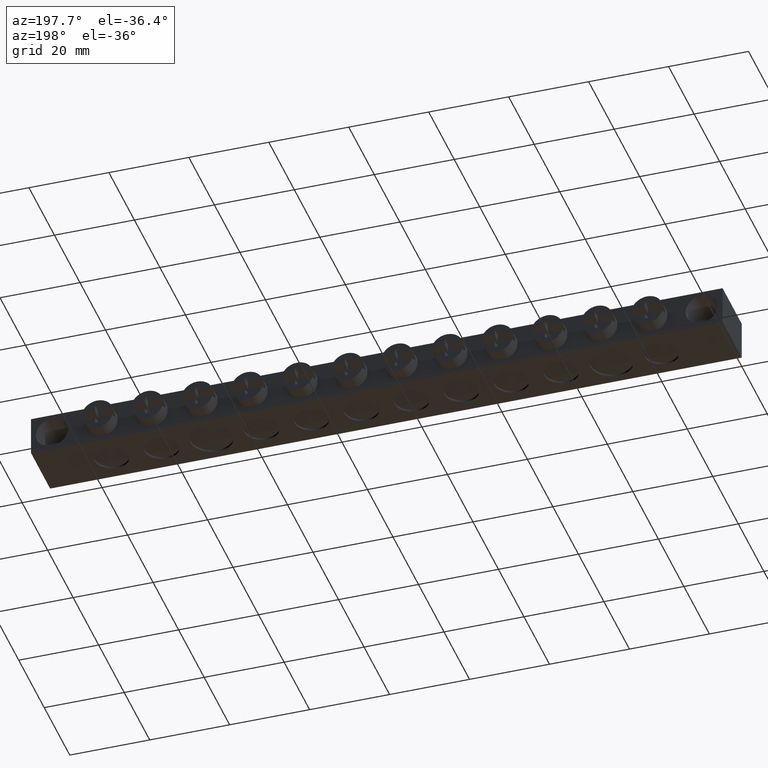
[diagram: clean part render]
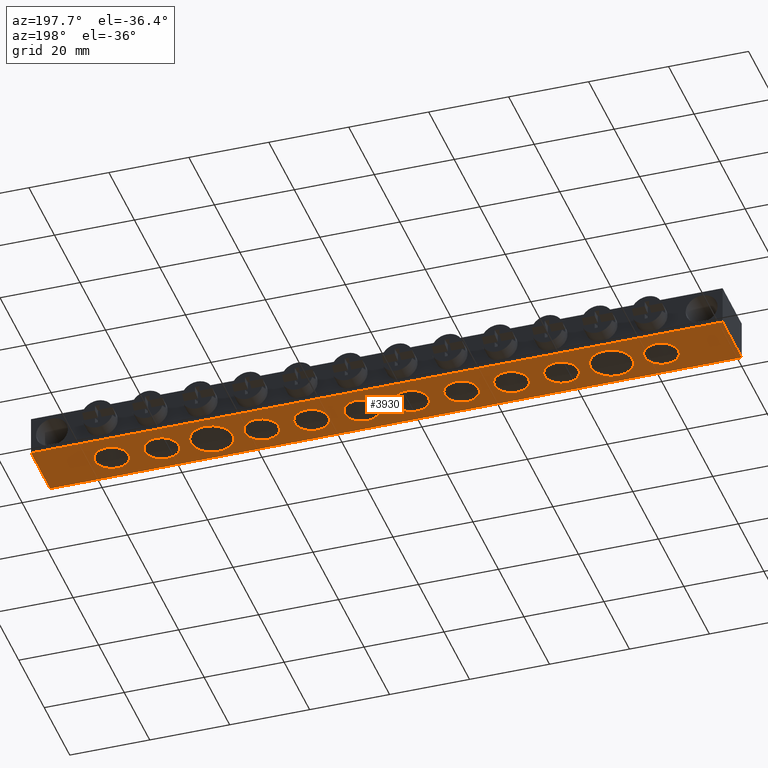
[diagram: same view with one face highlighted and labeled with its STEP entity id]
A machine part, auxiliary view. The second image highlights one B-rep face of the part: STEP entity #3930.
In plain terms, the highlighted planar face has unit normal (0, 0, 1).
Its self-contained STEP definition (entity closure, byte-faithful):
#860 = CARTESIAN_POINT ( 'NONE',  ( 130.2500000000000000, 7.299999999999998900, -10.00000000000000200 ) ) ;
#867 = DIRECTION ( 'NONE',  ( 1.000000000000000000, 0.0000000000000000000, 0.0000000000000000000 ) ) ;
#883 = DIRECTION ( 'NONE',  ( -0.0000000000000000000, -0.0000000000000000000, -1.000000000000000000 ) ) ;
#892 = DIRECTION ( 'NONE',  ( -0.0000000000000000000, -0.0000000000000000000, -1.000000000000000000 ) ) ;
#893 = DIRECTION ( 'NONE',  ( 1.000000000000000000, 0.0000000000000000000, 0.0000000000000000000 ) ) ;
#896 = DIRECTION ( 'NONE',  ( -0.0000000000000000000, -0.0000000000000000000, -1.000000000000000000 ) ) ;
#905 = DIRECTION ( 'NONE',  ( -0.0000000000000000000, -0.0000000000000000000, -1.000000000000000000 ) ) ;
#910 = CARTESIAN_POINT ( 'NONE',  ( 155.2500000000000000, 7.299999999999998900, -10.00000000000000200 ) ) ;
#911 = DIRECTION ( 'NONE',  ( 1.000000000000000000, 0.0000000000000000000, 0.0000000000000000000 ) ) ;
#921 = CARTESIAN_POINT ( 'NONE',  ( 105.2500000000000000, 7.299999999999989200, -10.00000000000000200 ) ) ;
#928 = CARTESIAN_POINT ( 'NONE',  ( 67.75000000000000000, 7.299999999999884400, -10.00000000000000200 ) ) ;
#929 = DIRECTION ( 'NONE',  ( 1.000000000000000000, 0.0000000000000000000, 0.0000000000000000000 ) ) ;
#933 = DIRECTION ( 'NONE',  ( -0.0000000000000000000, -0.0000000000000000000, -1.000000000000000000 ) ) ;
#941 = DIRECTION ( 'NONE',  ( 1.000000000000000000, 0.0000000000000000000, 0.0000000000000000000 ) ) ;
#942 = DIRECTION ( 'NONE',  ( 1.000000000000000000, 0.0000000000000000000, 0.0000000000000000000 ) ) ;
#949 = CARTESIAN_POINT ( 'NONE',  ( 42.75000000000000700, 7.299999999999816000, -10.00000000000000200 ) ) ;
#951 = DIRECTION ( 'NONE',  ( 1.000000000000000000, 0.0000000000000000000, 0.0000000000000000000 ) ) ;
#958 = CARTESIAN_POINT ( 'NONE',  ( 142.7500000000000900, 7.299999999999998900, -10.00000000000000200 ) ) ;
#960 = CARTESIAN_POINT ( 'NONE',  ( 92.75000000000000000, 7.299999999999954500, -10.00000000000000200 ) ) ;
#961 = DIRECTION ( 'NONE',  ( -0.0000000000000000000, -0.0000000000000000000, -1.000000000000000000 ) ) ;
#964 = DIRECTION ( 'NONE',  ( -0.0000000000000000000, -0.0000000000000000000, -1.000000000000000000 ) ) ;
#978 = CARTESIAN_POINT ( 'NONE',  ( 117.7500000000000300, 7.299999999999992700, -10.00000000000000200 ) ) ;
#981 = DIRECTION ( 'NONE',  ( -0.0000000000000000000, -0.0000000000000000000, -1.000000000000000000 ) ) ;
#991 = DIRECTION ( 'NONE',  ( 1.000000000000000000, 0.0000000000000000000, 0.0000000000000000000 ) ) ;
#1023 = CARTESIAN_POINT ( 'NONE',  ( 80.25000000000000000, 7.299999999999918100, -10.00000000000000200 ) ) ;
#1032 = CARTESIAN_POINT ( 'NONE',  ( 55.25000000000000700, 7.299999999999849700, -10.00000000000000200 ) ) ;
#1042 = DIRECTION ( 'NONE',  ( 1.000000000000000000, 0.0000000000000000000, 0.0000000000000000000 ) ) ;
#1044 = DIRECTION ( 'NONE',  ( -0.0000000000000000000, -0.0000000000000000000, -1.000000000000000000 ) ) ;
#1057 = DIRECTION ( 'NONE',  ( -0.0000000000000000000, -0.0000000000000000000, -1.000000000000000000 ) ) ;
#1061 = DIRECTION ( 'NONE',  ( 1.000000000000000000, 0.0000000000000000000, 0.0000000000000000000 ) ) ;
#1191 = DIRECTION ( 'NONE',  ( -0.0000000000000000000, -0.0000000000000000000, -1.000000000000000000 ) ) ;
#1194 = CARTESIAN_POINT ( 'NONE',  ( 30.25000000000000000, 7.299999999999998900, -10.00000000000000200 ) ) ;
#1197 = DIRECTION ( 'NONE',  ( -0.0000000000000000000, -0.0000000000000000000, -1.000000000000000000 ) ) ;
#1209 = DIRECTION ( 'NONE',  ( 1.000000000000000000, 0.0000000000000000000, 0.0000000000000000000 ) ) ;
#1218 = CARTESIAN_POINT ( 'NONE',  ( 17.75000000000000700, 7.299999999999998900, -10.00000000000000200 ) ) ;
#1222 = DIRECTION ( 'NONE',  ( 1.000000000000000000, 0.0000000000000000000, 0.0000000000000000000 ) ) ;
#1954 = EDGE_CURVE ( 'NONE', #7369, #7339, #3229, .T. ) ;
#1959 = EDGE_CURVE ( 'NONE', #7306, #7329, #3171, .T. ) ;
#1963 = EDGE_CURVE ( 'NONE', #7352, #7294, #3203, .T. ) ;
#1967 = EDGE_CURVE ( 'NONE', #7360, #7377, #3230, .T. ) ;
#1973 = EDGE_CURVE ( 'NONE', #7379, #7344, #3181, .T. ) ;
#1976 = EDGE_CURVE ( 'NONE', #7278, #7392, #3186, .T. ) ;
#1979 = EDGE_CURVE ( 'NONE', #7305, #7320, #3202, .T. ) ;
#1989 = EDGE_CURVE ( 'NONE', #7348, #7324, #3260, .T. ) ;
#2006 = EDGE_CURVE ( 'NONE', #7323, #7353, #3274, .T. ) ;
#2007 = EDGE_CURVE ( 'NONE', #7365, #7304, #3245, .T. ) ;
#2054 = EDGE_CURVE ( 'NONE', #7371, #7331, #3319, .T. ) ;
#2058 = EDGE_CURVE ( 'NONE', #7346, #7351, #3331, .T. ) ;
#2237 = DIRECTION ( 'NONE',  ( -1.000000000000000000, -0.0000000000000000000, 0.0000000000000000000 ) ) ;
#2248 = LINE ( 'NONE', #2249, #2743 ) ;
#2249 = CARTESIAN_POINT ( 'NONE',  ( 0.0000000000000000000, 15.00000000000000000, -10.00000000000000000 ) ) ;
#2250 = DIRECTION ( 'NONE',  ( 1.000000000000000000, 0.0000000000000000000, 0.0000000000000000000 ) ) ;
#2253 = CARTESIAN_POINT ( 'NONE',  ( 55.25000000000000700, 7.299999999999849700, -10.00000000000000200 ) ) ;
#2258 = DIRECTION ( 'NONE',  ( -0.0000000000000000000, -0.0000000000000000000, -1.000000000000000000 ) ) ;
#2272 = LINE ( 'NONE', #2285, #2820 ) ;
#2273 = CARTESIAN_POINT ( 'NONE',  ( 30.25000000000000000, 7.299999999999998900, -10.00000000000000200 ) ) ;
#2274 = DIRECTION ( 'NONE',  ( 1.000000000000000000, 0.0000000000000000000, 0.0000000000000000000 ) ) ;
#2285 = CARTESIAN_POINT ( 'NONE',  ( 173.0000000000000600, 15.00000000000000000, -10.00000000000000000 ) ) ;
#2287 = DIRECTION ( 'NONE',  ( -0.0000000000000000000, -0.0000000000000000000, -1.000000000000000000 ) ) ;
#2290 = DIRECTION ( 'NONE',  ( -0.0000000000000000000, 1.000000000000000000, 0.0000000000000000000 ) ) ;
#2300 = CARTESIAN_POINT ( 'NONE',  ( 92.75000000000000000, 7.299999999999954500, -10.00000000000000200 ) ) ;
#2303 = DIRECTION ( 'NONE',  ( 1.000000000000000000, 0.0000000000000000000, 0.0000000000000000000 ) ) ;
#2307 = DIRECTION ( 'NONE',  ( -0.0000000000000000000, -0.0000000000000000000, -1.000000000000000000 ) ) ;
#2319 = LINE ( 'NONE', #2331, #2803 ) ;
#2322 = DIRECTION ( 'NONE',  ( 1.000000000000000000, 0.0000000000000000000, 0.0000000000000000000 ) ) ;
#2329 = CARTESIAN_POINT ( 'NONE',  ( 80.25000000000000000, 7.299999999999918100, -10.00000000000000200 ) ) ;
#2331 = CARTESIAN_POINT ( 'NONE',  ( 0.0000000000000000000, 15.00000000000000000, -10.00000000000000000 ) ) ;
#2332 = DIRECTION ( 'NONE',  ( -0.0000000000000000000, -0.0000000000000000000, -1.000000000000000000 ) ) ;
#2354 = DIRECTION ( 'NONE',  ( 0.0000000000000000000, -1.000000000000000000, -0.0000000000000000000 ) ) ;
#2393 = CARTESIAN_POINT ( 'NONE',  ( 105.2500000000000000, 7.299999999999989200, -10.00000000000000200 ) ) ;
#2412 = DIRECTION ( 'NONE',  ( -0.0000000000000000000, -0.0000000000000000000, -1.000000000000000000 ) ) ;
#2414 = DIRECTION ( 'NONE',  ( 1.000000000000000000, 0.0000000000000000000, 0.0000000000000000000 ) ) ;
#2432 = CARTESIAN_POINT ( 'NONE',  ( 17.75000000000000700, 7.299999999999998900, -10.00000000000000200 ) ) ;
#2437 = DIRECTION ( 'NONE',  ( 1.000000000000000000, 0.0000000000000000000, 0.0000000000000000000 ) ) ;
#2441 = DIRECTION ( 'NONE',  ( -0.0000000000000000000, -0.0000000000000000000, -1.000000000000000000 ) ) ;
#2449 = CARTESIAN_POINT ( 'NONE',  ( 130.2500000000000000, 7.299999999999998900, -10.00000000000000200 ) ) ;
#2450 = DIRECTION ( 'NONE',  ( -0.0000000000000000000, -0.0000000000000000000, -1.000000000000000000 ) ) ;
#2455 = CARTESIAN_POINT ( 'NONE',  ( 155.2500000000000000, 7.299999999999998900, -10.00000000000000200 ) ) ;
#2458 = DIRECTION ( 'NONE',  ( -0.0000000000000000000, -0.0000000000000000000, -1.000000000000000000 ) ) ;
#2467 = DIRECTION ( 'NONE',  ( 1.000000000000000000, 0.0000000000000000000, 0.0000000000000000000 ) ) ;
#2468 = LINE ( 'NONE', #2476, #2868 ) ;
#2472 = DIRECTION ( 'NONE',  ( 1.000000000000000000, 0.0000000000000000000, 0.0000000000000000000 ) ) ;
#2476 = CARTESIAN_POINT ( 'NONE',  ( 0.0000000000000000000, 0.0000000000000000000, -10.00000000000000000 ) ) ;
#2484 = CARTESIAN_POINT ( 'NONE',  ( 117.7500000000000300, 7.299999999999992700, -10.00000000000000200 ) ) ;
#2485 = CARTESIAN_POINT ( 'NONE',  ( 42.75000000000000700, 7.299999999999816000, -10.00000000000000200 ) ) ;
#2490 = DIRECTION ( 'NONE',  ( 1.000000000000000000, 0.0000000000000000000, 0.0000000000000000000 ) ) ;
#2497 = DIRECTION ( 'NONE',  ( -0.0000000000000000000, -0.0000000000000000000, -1.000000000000000000 ) ) ;
#2500 = DIRECTION ( 'NONE',  ( -0.0000000000000000000, -0.0000000000000000000, -1.000000000000000000 ) ) ;
#2503 = DIRECTION ( 'NONE',  ( 1.000000000000000000, 0.0000000000000000000, 0.0000000000000000000 ) ) ;
#2507 = DIRECTION ( 'NONE',  ( -0.0000000000000000000, -0.0000000000000000000, -1.000000000000000000 ) ) ;
#2511 = DIRECTION ( 'NONE',  ( 1.000000000000000000, 0.0000000000000000000, 0.0000000000000000000 ) ) ;
#2512 = DIRECTION ( 'NONE',  ( 1.000000000000000000, 0.0000000000000000000, -0.0000000000000000000 ) ) ;
#2517 = CARTESIAN_POINT ( 'NONE',  ( 142.7500000000000900, 7.299999999999998900, -10.00000000000000200 ) ) ;
#2719 = CIRCLE ( 'NONE', #2721, 4.250000000000003600 ) ;
#2721 = AXIS2_PLACEMENT_3D ( 'NONE', #5629, #5669, #5700 ) ;
#2743 = VECTOR ( 'NONE', #2237, 1000.000000000000000 ) ;
#2754 = CIRCLE ( 'NONE', #2825, 4.250000000000003600 ) ;
#2777 = CIRCLE ( 'NONE', #2786, 4.250000000000003600 ) ;
#2784 = CIRCLE ( 'NONE', #2836, 5.249999999999997300 ) ;
#2786 = AXIS2_PLACEMENT_3D ( 'NONE', #2300, #2307, #2322 ) ;
#2792 = CIRCLE ( 'NONE', #2822, 4.250000000000003600 ) ;
#2803 = VECTOR ( 'NONE', #2354, 1000.000000000000000 ) ;
#2820 = VECTOR ( 'NONE', #2290, 1000.000000000000000 ) ;
#2822 = AXIS2_PLACEMENT_3D ( 'NONE', #2329, #2332, #2303 ) ;
#2825 = AXIS2_PLACEMENT_3D ( 'NONE', #2253, #2258, #2250 ) ;
#2836 = AXIS2_PLACEMENT_3D ( 'NONE', #2273, #2287, #2274 ) ;
#2839 = CIRCLE ( 'NONE', #2841, 4.250000000000003600 ) ;
#2841 = AXIS2_PLACEMENT_3D ( 'NONE', #2393, #2412, #2414 ) ;
#2855 = CIRCLE ( 'NONE', #2891, 4.250000000000000000 ) ;
#2860 = AXIS2_PLACEMENT_3D ( 'NONE', #2455, #2458, #2472 ) ;
#2868 = VECTOR ( 'NONE', #2512, 1000.000000000000000 ) ;
#2877 = AXIS2_PLACEMENT_3D ( 'NONE', #2449, #2450, #2467 ) ;
#2886 = CIRCLE ( 'NONE', #2877, 5.250000000000004400 ) ;
#2891 = AXIS2_PLACEMENT_3D ( 'NONE', #2432, #2441, #2437 ) ;
#2893 = CIRCLE ( 'NONE', #2860, 4.250000000000003600 ) ;
#2922 = AXIS2_PLACEMENT_3D ( 'NONE', #2485, #2500, #2511 ) ;
#2923 = AXIS2_PLACEMENT_3D ( 'NONE', #2484, #2507, #2503 ) ;
#2924 = AXIS2_PLACEMENT_3D ( 'NONE', #2517, #2497, #2490 ) ;
#2932 = CIRCLE ( 'NONE', #2922, 4.250000000000003600 ) ;
#2934 = CIRCLE ( 'NONE', #2923, 4.250000000000003600 ) ;
#2942 = CIRCLE ( 'NONE', #2924, 4.250000000000003600 ) ;
#3171 = CIRCLE ( 'NONE', #3219, 4.250000000000003600 ) ;
#3181 = CIRCLE ( 'NONE', #3185, 4.250000000000003600 ) ;
#3185 = AXIS2_PLACEMENT_3D ( 'NONE', #958, #961, #951 ) ;
#3186 = CIRCLE ( 'NONE', #3192, 4.250000000000003600 ) ;
#3188 = AXIS2_PLACEMENT_3D ( 'NONE', #910, #892, #911 ) ;
#3192 = AXIS2_PLACEMENT_3D ( 'NONE', #949, #964, #941 ) ;
#3202 = CIRCLE ( 'NONE', #3207, 4.250000000000003600 ) ;
#3203 = CIRCLE ( 'NONE', #3205, 4.250000000000003600 ) ;
#3205 = AXIS2_PLACEMENT_3D ( 'NONE', #928, #905, #929 ) ;
#3207 = AXIS2_PLACEMENT_3D ( 'NONE', #960, #933, #942 ) ;
#3219 = AXIS2_PLACEMENT_3D ( 'NONE', #921, #896, #893 ) ;
#3220 = AXIS2_PLACEMENT_3D ( 'NONE', #860, #883, #867 ) ;
#3229 = CIRCLE ( 'NONE', #3220, 5.250000000000004400 ) ;
#3230 = CIRCLE ( 'NONE', #3188, 4.250000000000003600 ) ;
#3236 = AXIS2_PLACEMENT_3D ( 'NONE', #1032, #1057, #1061 ) ;
#3245 = CIRCLE ( 'NONE', #3270, 4.250000000000003600 ) ;
#3260 = CIRCLE ( 'NONE', #3267, 4.250000000000003600 ) ;
#3267 = AXIS2_PLACEMENT_3D ( 'NONE', #978, #981, #991 ) ;
#3270 = AXIS2_PLACEMENT_3D ( 'NONE', #1023, #1044, #1042 ) ;
#3274 = CIRCLE ( 'NONE', #3236, 4.250000000000003600 ) ;
#3295 = AXIS2_PLACEMENT_3D ( 'NONE', #1194, #1191, #1222 ) ;
#3319 = CIRCLE ( 'NONE', #3322, 4.250000000000000000 ) ;
#3322 = AXIS2_PLACEMENT_3D ( 'NONE', #1218, #1197, #1209 ) ;
#3331 = CIRCLE ( 'NONE', #3295, 5.249999999999997300 ) ;
#3432 = AXIS2_PLACEMENT_3D ( 'NONE', #6443, #6482, #6444 ) ;
#3662 = CARTESIAN_POINT ( 'NONE',  ( 76.00000000000000000, 7.299999999999919000, -10.00000000000000200 ) ) ;
#3664 = CARTESIAN_POINT ( 'NONE',  ( 97.00000000000000000, 7.299999999999954500, -10.00000000000000200 ) ) ;
#3672 = CARTESIAN_POINT ( 'NONE',  ( 109.5000000000000000, 7.299999999999989200, -10.00000000000000200 ) ) ;
#3674 = CARTESIAN_POINT ( 'NONE',  ( 173.0000000000000600, 0.0000000000000000000, -10.00000000000000000 ) ) ;
#3687 = CARTESIAN_POINT ( 'NONE',  ( 47.00000000000001400, 7.299999999999816000, -10.00000000000000200 ) ) ;
#3695 = CARTESIAN_POINT ( 'NONE',  ( 0.0000000000000000000, 15.00000000000000000, -10.00000000000000000 ) ) ;
#3702 = CARTESIAN_POINT ( 'NONE',  ( 173.0000000000000600, 15.00000000000000000, -10.00000000000000000 ) ) ;
#3704 = CARTESIAN_POINT ( 'NONE',  ( 63.50000000000000000, 7.299999999999885200, -10.00000000000000200 ) ) ;
#3714 = CARTESIAN_POINT ( 'NONE',  ( 0.0000000000000000000, 0.0000000000000000000, -10.00000000000000000 ) ) ;
#3723 = CARTESIAN_POINT ( 'NONE',  ( 88.50000000000000000, 7.299999999999955400, -10.00000000000000200 ) ) ;
#3725 = CARTESIAN_POINT ( 'NONE',  ( 13.50000000000000500, 7.299999999999999800, -10.00000000000000200 ) ) ;
#3726 = CARTESIAN_POINT ( 'NONE',  ( 100.9999999999999900, 7.299999999999990100, -10.00000000000000200 ) ) ;
#3729 = CARTESIAN_POINT ( 'NONE',  ( 59.50000000000001400, 7.299999999999849700, -10.00000000000000200 ) ) ;
#3735 = CARTESIAN_POINT ( 'NONE',  ( 113.5000000000000100, 7.299999999999993600, -10.00000000000000200 ) ) ;
#3747 = CARTESIAN_POINT ( 'NONE',  ( 138.5000000000000600, 7.299999999999999800, -10.00000000000000200 ) ) ;
#3748 = CARTESIAN_POINT ( 'NONE',  ( 122.0000000000000300, 7.299999999999992700, -10.00000000000000200 ) ) ;
#3751 = CARTESIAN_POINT ( 'NONE',  ( 159.5000000000000000, 7.299999999999998900, -10.00000000000000200 ) ) ;
#3756 = CARTESIAN_POINT ( 'NONE',  ( 35.50000000000000000, 7.299999999999998900, -10.00000000000000200 ) ) ;
#3760 = CARTESIAN_POINT ( 'NONE',  ( 25.00000000000000000, 7.299999999999999800, -10.00000000000000200 ) ) ;
#3764 = CARTESIAN_POINT ( 'NONE',  ( 84.50000000000000000, 7.299999999999918100, -10.00000000000000200 ) ) ;
#3767 = CARTESIAN_POINT ( 'NONE',  ( 135.5000000000000000, 7.299999999999998900, -10.00000000000000200 ) ) ;
#3772 = CARTESIAN_POINT ( 'NONE',  ( 72.00000000000001400, 7.299999999999884400, -10.00000000000000200 ) ) ;
#3777 = CARTESIAN_POINT ( 'NONE',  ( 51.00000000000000700, 7.299999999999850600, -10.00000000000000200 ) ) ;
#3781 = CARTESIAN_POINT ( 'NONE',  ( 125.0000000000000000, 7.299999999999999800, -10.00000000000000200 ) ) ;
#3787 = CARTESIAN_POINT ( 'NONE',  ( 38.50000000000000700, 7.299999999999816900, -10.00000000000000200 ) ) ;
#3792 = CARTESIAN_POINT ( 'NONE',  ( 151.0000000000000000, 7.299999999999999800, -10.00000000000000200 ) ) ;
#3805 = CARTESIAN_POINT ( 'NONE',  ( 22.00000000000000700, 7.299999999999998900, -10.00000000000000200 ) ) ;
#3813 = CARTESIAN_POINT ( 'NONE',  ( 147.0000000000000900, 7.299999999999998900, -10.00000000000000200 ) ) ;
#3930 = ADVANCED_FACE ( 'NONE', ( #6455, #6469, #6472, #6453, #6437, #6456, #6470, #6473, #6451, #6477, #6448, #6478, #6476 ), #6458, .F. ) ;
#4153 = EDGE_CURVE ( 'NONE', #7294, #7352, #2719, .T. ) ;
#4182 = EDGE_CURVE ( 'NONE', #7293, #7268, #2248, .T. ) ;
#4183 = EDGE_CURVE ( 'NONE', #7353, #7323, #2754, .T. ) ;
#4192 = EDGE_CURVE ( 'NONE', #7290, #7293, #2272, .T. ) ;
#4196 = EDGE_CURVE ( 'NONE', #7351, #7346, #2784, .T. ) ;
#4201 = EDGE_CURVE ( 'NONE', #7320, #7305, #2777, .T. ) ;
#4203 = EDGE_CURVE ( 'NONE', #7304, #7365, #2792, .T. ) ;
#4206 = EDGE_CURVE ( 'NONE', #7268, #7277, #2319, .T. ) ;
#4229 = EDGE_CURVE ( 'NONE', #7329, #7306, #2839, .T. ) ;
#4238 = EDGE_CURVE ( 'NONE', #7331, #7371, #2855, .T. ) ;
#4242 = EDGE_CURVE ( 'NONE', #7339, #7369, #2886, .T. ) ;
#4243 = EDGE_CURVE ( 'NONE', #7377, #7360, #2893, .T. ) ;
#4252 = EDGE_CURVE ( 'NONE', #7277, #7290, #2468, .T. ) ;
#4256 = EDGE_CURVE ( 'NONE', #7344, #7379, #2942, .T. ) ;
#4259 = EDGE_CURVE ( 'NONE', #7392, #7278, #2932, .T. ) ;
#4260 = EDGE_CURVE ( 'NONE', #7324, #7348, #2934, .T. ) ;
#5059 = ORIENTED_EDGE ( 'NONE', *, *, #1979, .F. ) ;
#5064 = ORIENTED_EDGE ( 'NONE', *, *, #4259, .F. ) ;
#5087 = ORIENTED_EDGE ( 'NONE', *, *, #4153, .F. ) ;
#5088 = ORIENTED_EDGE ( 'NONE', *, *, #4201, .F. ) ;
#5115 = ORIENTED_EDGE ( 'NONE', *, *, #1976, .F. ) ;
#5123 = ORIENTED_EDGE ( 'NONE', *, *, #1959, .F. ) ;
#5124 = ORIENTED_EDGE ( 'NONE', *, *, #4182, .F. ) ;
#5125 = ORIENTED_EDGE ( 'NONE', *, *, #4242, .F. ) ;
#5128 = ORIENTED_EDGE ( 'NONE', *, *, #1989, .F. ) ;
#5130 = ORIENTED_EDGE ( 'NONE', *, *, #1963, .F. ) ;
#5133 = ORIENTED_EDGE ( 'NONE', *, *, #4243, .F. ) ;
#5134 = ORIENTED_EDGE ( 'NONE', *, *, #4256, .F. ) ;
#5136 = ORIENTED_EDGE ( 'NONE', *, *, #4229, .F. ) ;
#5138 = ORIENTED_EDGE ( 'NONE', *, *, #4238, .F. ) ;
#5139 = ORIENTED_EDGE ( 'NONE', *, *, #4252, .F. ) ;
#5140 = ORIENTED_EDGE ( 'NONE', *, *, #4196, .F. ) ;
#5141 = ORIENTED_EDGE ( 'NONE', *, *, #2058, .F. ) ;
#5144 = ORIENTED_EDGE ( 'NONE', *, *, #2054, .F. ) ;
#5145 = ORIENTED_EDGE ( 'NONE', *, *, #4206, .F. ) ;
#5154 = ORIENTED_EDGE ( 'NONE', *, *, #4260, .F. ) ;
#5156 = ORIENTED_EDGE ( 'NONE', *, *, #4192, .F. ) ;
#5157 = ORIENTED_EDGE ( 'NONE', *, *, #1973, .F. ) ;
#5161 = ORIENTED_EDGE ( 'NONE', *, *, #2007, .F. ) ;
#5168 = ORIENTED_EDGE ( 'NONE', *, *, #1954, .F. ) ;
#5170 = ORIENTED_EDGE ( 'NONE', *, *, #4183, .F. ) ;
#5171 = ORIENTED_EDGE ( 'NONE', *, *, #1967, .F. ) ;
#5175 = ORIENTED_EDGE ( 'NONE', *, *, #4203, .F. ) ;
#5183 = ORIENTED_EDGE ( 'NONE', *, *, #2006, .F. ) ;
#5629 = CARTESIAN_POINT ( 'NONE',  ( 67.75000000000000000, 7.299999999999884400, -10.00000000000000200 ) ) ;
#5669 = DIRECTION ( 'NONE',  ( -0.0000000000000000000, -0.0000000000000000000, -1.000000000000000000 ) ) ;
#5700 = DIRECTION ( 'NONE',  ( 1.000000000000000000, 0.0000000000000000000, 0.0000000000000000000 ) ) ;
#6437 = FACE_BOUND ( 'NONE', #7081, .T. ) ;
#6443 = CARTESIAN_POINT ( 'NONE',  ( 0.0000000000000000000, 15.00000000000000000, -10.00000000000000000 ) ) ;
#6444 = DIRECTION ( 'NONE',  ( 1.000000000000000000, 0.0000000000000000000, -0.0000000000000000000 ) ) ;
#6448 = FACE_BOUND ( 'NONE', #7127, .T. ) ;
#6451 = FACE_BOUND ( 'NONE', #7095, .T. ) ;
#6453 = FACE_BOUND ( 'NONE', #7068, .T. ) ;
#6455 = FACE_BOUND ( 'NONE', #7104, .T. ) ;
#6456 = FACE_BOUND ( 'NONE', #7106, .T. ) ;
#6458 = PLANE ( 'NONE',  #3432 ) ;
#6469 = FACE_BOUND ( 'NONE', #7027, .T. ) ;
#6470 = FACE_BOUND ( 'NONE', #7110, .T. ) ;
#6472 = FACE_BOUND ( 'NONE', #7036, .T. ) ;
#6473 = FACE_BOUND ( 'NONE', #7082, .T. ) ;
#6476 = FACE_OUTER_BOUND ( 'NONE', #7055, .T. ) ;
#6477 = FACE_BOUND ( 'NONE', #7088, .T. ) ;
#6478 = FACE_BOUND ( 'NONE', #7105, .T. ) ;
#6482 = DIRECTION ( 'NONE',  ( 0.0000000000000000000, 0.0000000000000000000, 1.000000000000000000 ) ) ;
#7027 = EDGE_LOOP ( 'NONE', ( #5183, #5170 ) ) ;
#7036 = EDGE_LOOP ( 'NONE', ( #5130, #5087 ) ) ;
#7055 = EDGE_LOOP ( 'NONE', ( #5124, #5156, #5139, #5145 ) ) ;
#7068 = EDGE_LOOP ( 'NONE', ( #5161, #5175 ) ) ;
#7081 = EDGE_LOOP ( 'NONE', ( #5059, #5088 ) ) ;
#7082 = EDGE_LOOP ( 'NONE', ( #5168, #5125 ) ) ;
#7088 = EDGE_LOOP ( 'NONE', ( #5171, #5133 ) ) ;
#7095 = EDGE_LOOP ( 'NONE', ( #5157, #5134 ) ) ;
#7104 = EDGE_LOOP ( 'NONE', ( #5115, #5064 ) ) ;
#7105 = EDGE_LOOP ( 'NONE', ( #5144, #5138 ) ) ;
#7106 = EDGE_LOOP ( 'NONE', ( #5128, #5154 ) ) ;
#7110 = EDGE_LOOP ( 'NONE', ( #5123, #5136 ) ) ;
#7127 = EDGE_LOOP ( 'NONE', ( #5141, #5140 ) ) ;
#7268 = VERTEX_POINT ( 'NONE', #3695 ) ;
#7277 = VERTEX_POINT ( 'NONE', #3714 ) ;
#7278 = VERTEX_POINT ( 'NONE', #3687 ) ;
#7290 = VERTEX_POINT ( 'NONE', #3674 ) ;
#7293 = VERTEX_POINT ( 'NONE', #3702 ) ;
#7294 = VERTEX_POINT ( 'NONE', #3704 ) ;
#7304 = VERTEX_POINT ( 'NONE', #3662 ) ;
#7305 = VERTEX_POINT ( 'NONE', #3664 ) ;
#7306 = VERTEX_POINT ( 'NONE', #3672 ) ;
#7320 = VERTEX_POINT ( 'NONE', #3723 ) ;
#7323 = VERTEX_POINT ( 'NONE', #3729 ) ;
#7324 = VERTEX_POINT ( 'NONE', #3735 ) ;
#7329 = VERTEX_POINT ( 'NONE', #3726 ) ;
#7331 = VERTEX_POINT ( 'NONE', #3725 ) ;
#7339 = VERTEX_POINT ( 'NONE', #3781 ) ;
#7344 = VERTEX_POINT ( 'NONE', #3747 ) ;
#7346 = VERTEX_POINT ( 'NONE', #3756 ) ;
#7348 = VERTEX_POINT ( 'NONE', #3748 ) ;
#7351 = VERTEX_POINT ( 'NONE', #3760 ) ;
#7352 = VERTEX_POINT ( 'NONE', #3772 ) ;
#7353 = VERTEX_POINT ( 'NONE', #3777 ) ;
#7360 = VERTEX_POINT ( 'NONE', #3751 ) ;
#7365 = VERTEX_POINT ( 'NONE', #3764 ) ;
#7369 = VERTEX_POINT ( 'NONE', #3767 ) ;
#7371 = VERTEX_POINT ( 'NONE', #3805 ) ;
#7377 = VERTEX_POINT ( 'NONE', #3792 ) ;
#7379 = VERTEX_POINT ( 'NONE', #3813 ) ;
#7392 = VERTEX_POINT ( 'NONE', #3787 ) ;